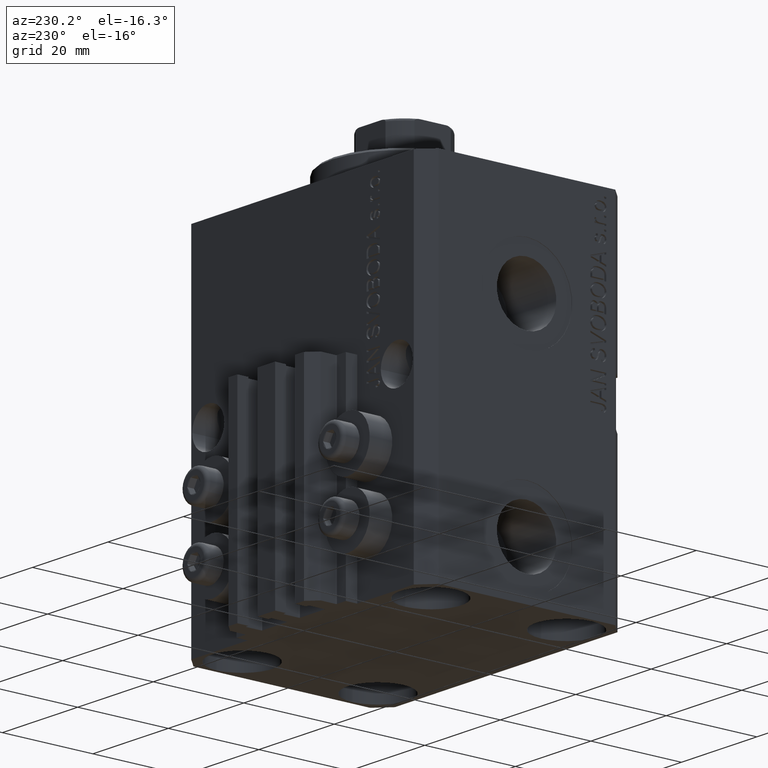
[diagram: clean part render]
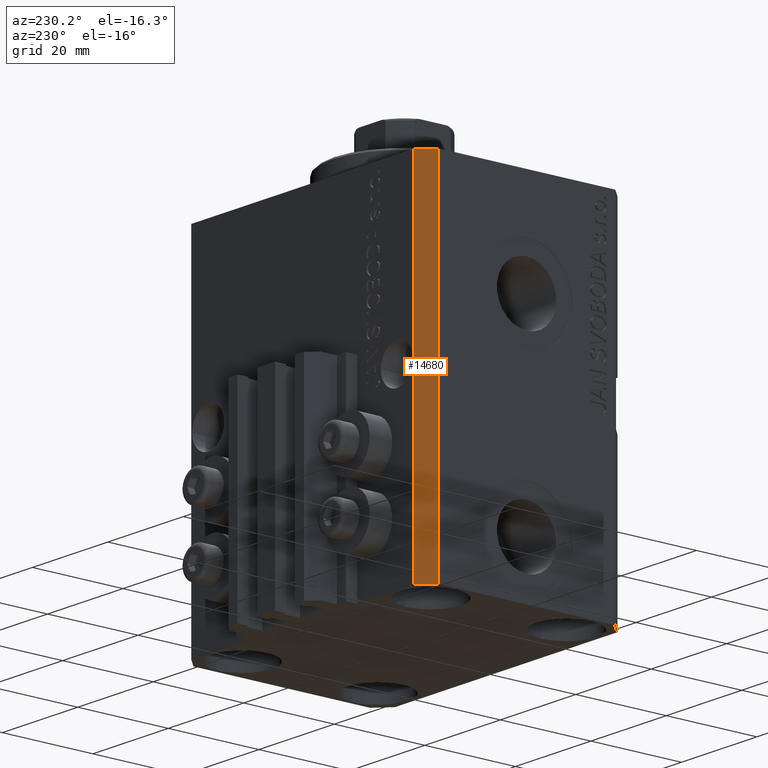
[diagram: same view with one face highlighted and labeled with its STEP entity id]
A machine part, auxiliary view. The second image highlights one B-rep face of the part: STEP entity #14680.
In plain terms, the highlighted planar face has unit normal (-0.7071, 0.7071, 0).
Its self-contained STEP definition (entity closure, byte-faithful):
#718 = CARTESIAN_POINT ( 'NONE',  ( -29.49999999999650413, 22.49999999999949907, 0.000000000000000000 ) ) ;
#1500 = CARTESIAN_POINT ( 'NONE',  ( -29.49999999999650413, 22.49999999999949907, 0.000000000000000000 ) ) ;
#2170 = LINE ( 'NONE', #20527, #11731 ) ;
#4753 = VERTEX_POINT ( 'NONE', #46973 ) ;
#7197 = VERTEX_POINT ( 'NONE', #31859 ) ;
#7815 = DIRECTION ( 'NONE',  ( 0.000000000000000000, 0.000000000000000000, 1.000000000000000000 ) ) ;
#8363 = ORIENTED_EDGE ( 'NONE', *, *, #41497, .T. ) ;
#9647 = FACE_OUTER_BOUND ( 'NONE', #40675, .T. ) ;
#9703 = EDGE_CURVE ( 'NONE', #36737, #7197, #38338, .T. ) ;
#9976 = ORIENTED_EDGE ( 'NONE', *, *, #36285, .T. ) ;
#10568 = CARTESIAN_POINT ( 'NONE',  ( -29.49999999999650413, 22.49999999999949907, -77.00000000000000000 ) ) ;
#10780 = VECTOR ( 'NONE', #26532, 1000.000000000000114 ) ;
#11724 = DIRECTION ( 'NONE',  ( -0.7071067811865474617, -0.7071067811865474617, 0.000000000000000000 ) ) ;
#11731 = VECTOR ( 'NONE', #38126, 1000.000000000000000 ) ;
#13265 = DIRECTION ( 'NONE',  ( -0.7071067811865474617, -0.7071067811865474617, 0.000000000000000000 ) ) ;
#13352 = VECTOR ( 'NONE', #11724, 1000.000000000000114 ) ;
#14680 = ADVANCED_FACE ( 'NONE', ( #9647 ), #27007, .T. ) ;
#14944 = VECTOR ( 'NONE', #7815, 1000.000000000000000 ) ;
#15593 = LINE ( 'NONE', #19677, #13352 ) ;
#15783 = CARTESIAN_POINT ( 'NONE',  ( -32.49999999999650413, 19.49999999999949907, -77.00000000000000000 ) ) ;
#17953 = EDGE_CURVE ( 'NONE', #22798, #36737, #2170, .T. ) ;
#19677 = CARTESIAN_POINT ( 'NONE',  ( -29.49999999999650413, 22.49999999999949907, -77.00000000000000000 ) ) ;
#20527 = CARTESIAN_POINT ( 'NONE',  ( -29.49999999999650413, 22.49999999999949907, -77.00000000000000000 ) ) ;
#22798 = VERTEX_POINT ( 'NONE', #10568 ) ;
#26532 = DIRECTION ( 'NONE',  ( -0.7071067811865474617, -0.7071067811865474617, 0.000000000000000000 ) ) ;
#27007 = PLANE ( 'NONE',  #44686 ) ;
#29579 = ORIENTED_EDGE ( 'NONE', *, *, #9703, .F. ) ;
#30855 = CARTESIAN_POINT ( 'NONE',  ( -29.49999999999650413, 22.49999999999949907, -77.00000000000000000 ) ) ;
#31859 = CARTESIAN_POINT ( 'NONE',  ( -32.49999999999650413, 19.49999999999949907, 0.000000000000000000 ) ) ;
#32364 = ORIENTED_EDGE ( 'NONE', *, *, #17953, .F. ) ;
#34082 = LINE ( 'NONE', #15783, #14944 ) ;
#35191 = DIRECTION ( 'NONE',  ( -0.7071067811865475727, 0.7071067811865475727, 0.000000000000000000 ) ) ;
#36285 = EDGE_CURVE ( 'NONE', #22798, #4753, #15593, .T. ) ;
#36737 = VERTEX_POINT ( 'NONE', #1500 ) ;
#38126 = DIRECTION ( 'NONE',  ( 0.000000000000000000, 0.000000000000000000, 1.000000000000000000 ) ) ;
#38338 = LINE ( 'NONE', #718, #10780 ) ;
#40675 = EDGE_LOOP ( 'NONE', ( #29579, #32364, #9976, #8363 ) ) ;
#41497 = EDGE_CURVE ( 'NONE', #4753, #7197, #34082, .T. ) ;
#44686 = AXIS2_PLACEMENT_3D ( 'NONE', #30855, #35191, #13265 ) ;
#46973 = CARTESIAN_POINT ( 'NONE',  ( -32.49999999999650413, 19.49999999999949907, -77.00000000000000000 ) ) ;